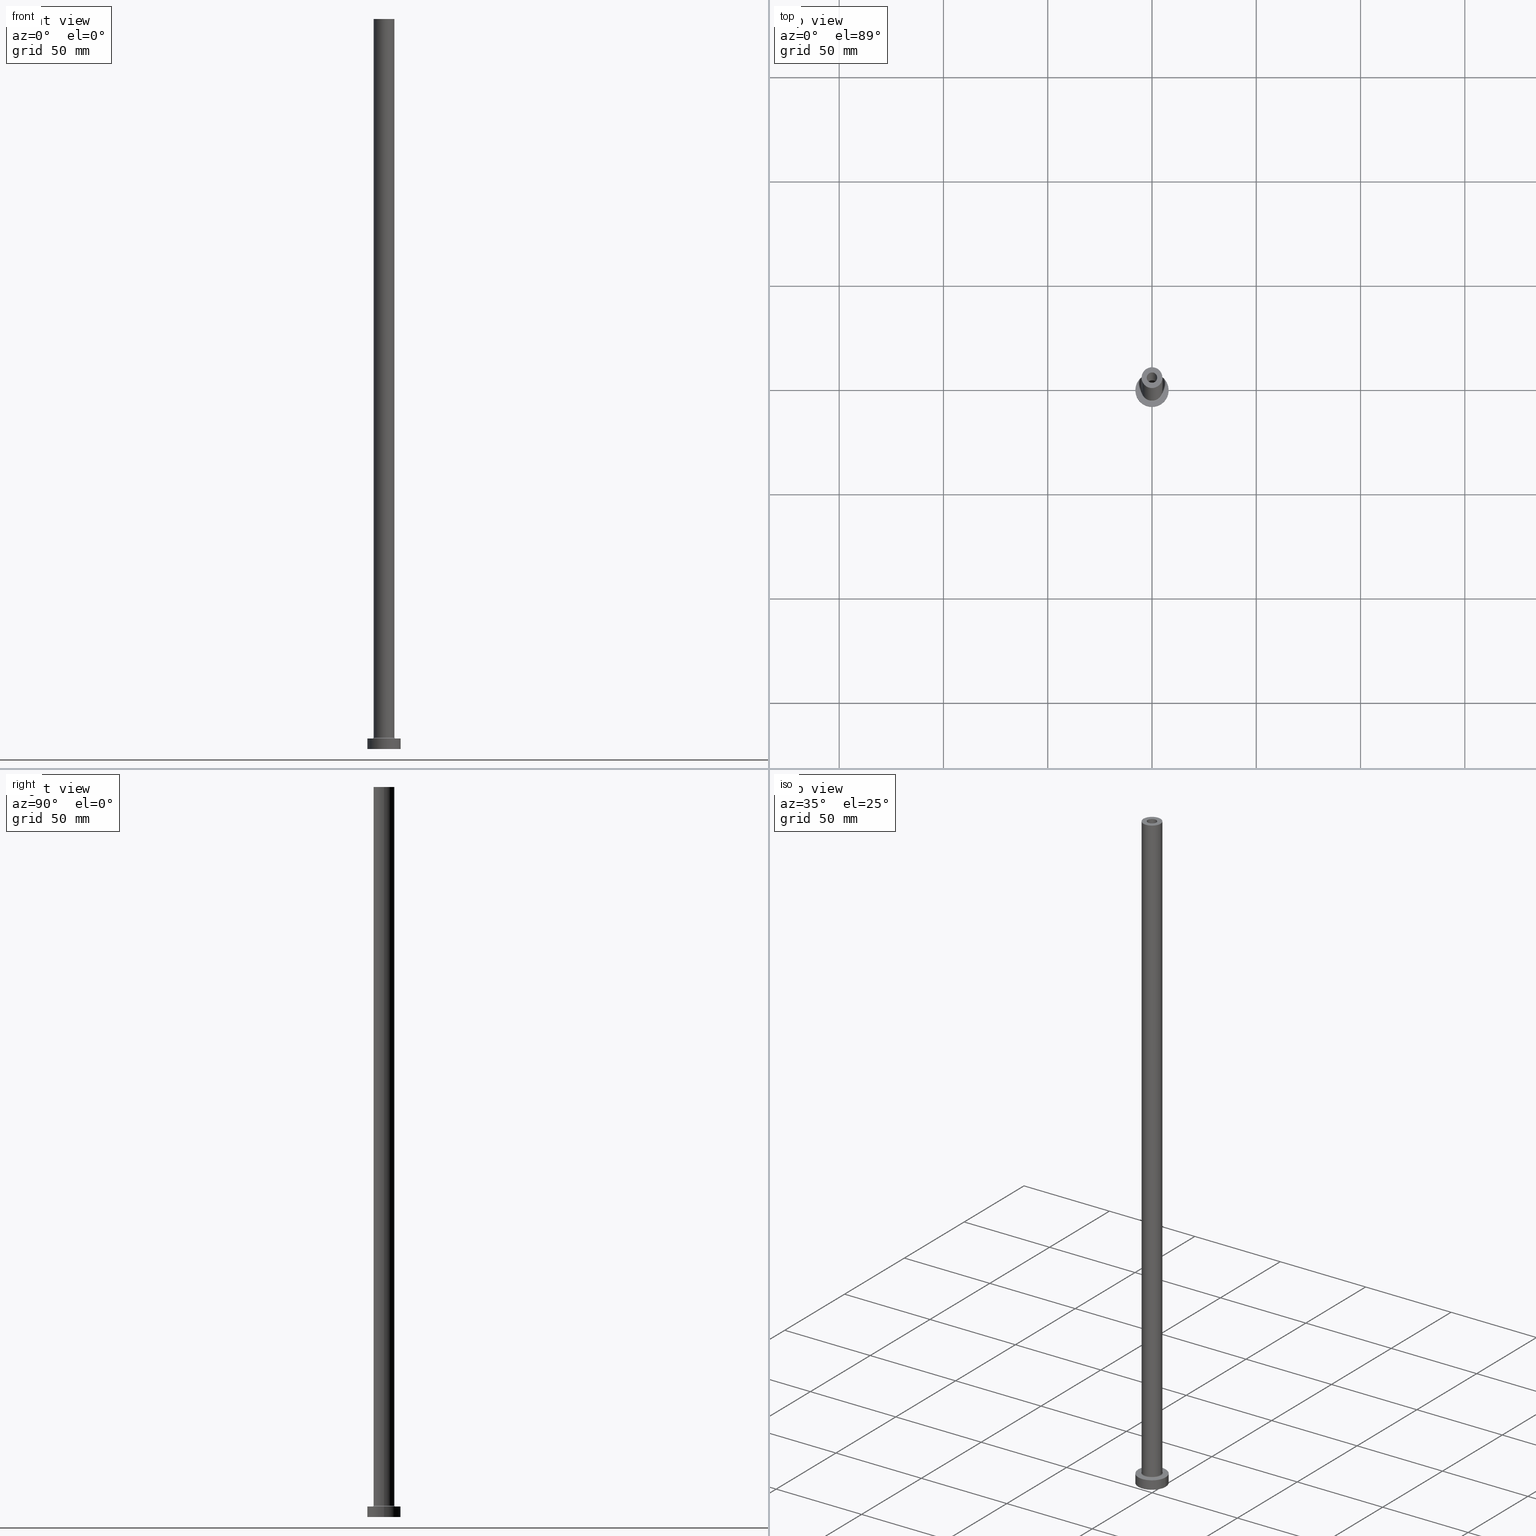
[diagram: canonical four-view strip — front | top / right | iso, engineering-drawing reading convention]
A machine part, canonical four-view strip (front | top / right | iso — engineering-drawing reading convention). The complete STEP part file that produces these views, byte-faithful:
ISO-10303-21;
HEADER;
FILE_DESCRIPTION (( 'STEP AP203' ),
    '1' );
FILE_NAME ('1d2e.STEP',
    '2023-02-13T16:58:20',
    ( '' ),
    ( '' ),
    'SwSTEP 2.0',
    'SolidWorks 2019',
    '' );
FILE_SCHEMA (( 'CONFIG_CONTROL_DESIGN' ));
ENDSEC;

DATA;
#1 = ORIENTED_EDGE ( 'NONE', *, *, #197, .T. ) ;
#2 = DIRECTION ( 'NONE',  ( 0.000000000000000000, 0.000000000000000000, 1.000000000000000000 ) ) ;
#3 = PLANE ( 'NONE',  #62 ) ;
#4 = MECHANICAL_CONTEXT ( 'NONE', #249, 'mechanical' ) ;
#5 = ORIENTED_EDGE ( 'NONE', *, *, #286, .F. ) ;
#6 = FACE_OUTER_BOUND ( 'NONE', #370, .T. ) ;
#7 = AXIS2_PLACEMENT_3D ( 'NONE', #343, #122, #280 ) ;
#8 = CARTESIAN_POINT ( 'NONE',  ( 0.000000000000000000, 0.000000000000000000, 312.4953318805773961 ) ) ;
#9 = ORIENTED_EDGE ( 'NONE', *, *, #268, .T. ) ;
#10 = DATE_AND_TIME ( #336, #359 ) ;
#11 = EDGE_CURVE ( 'NONE', #259, #373, #132, .T. ) ;
#12 = ORIENTED_EDGE ( 'NONE', *, *, #264, .F. ) ;
#13 = DIRECTION ( 'NONE',  ( -1.000000000000000000, 0.000000000000000000, 0.000000000000000000 ) ) ;
#14 = ORIENTED_EDGE ( 'NONE', *, *, #26, .T. ) ;
#15 = CARTESIAN_POINT ( 'NONE',  ( 0.000000000000000000, 0.000000000000000000, 5.500000000000005329 ) ) ;
#16 = CIRCLE ( 'NONE', #443, 2.649999999999999911 ) ;
#17 = CC_DESIGN_SECURITY_CLASSIFICATION ( #203, ( #63 ) ) ;
#18 = CARTESIAN_POINT ( 'NONE',  ( 0.000000000000000000, 0.000000000000000000, 0.000000000000000000 ) ) ;
#19 = DIRECTION ( 'NONE',  ( 1.000000000000000000, 0.000000000000000000, -0.000000000000000000 ) ) ;
#20 = DIRECTION ( 'NONE',  ( 0.000000000000000000, 0.000000000000000000, 1.000000000000000000 ) ) ;
#21 = APPROVAL_STATUS ( 'not_yet_approved' ) ;
#22 = PERSON_AND_ORGANIZATION ( #279, #36 ) ;
#23 = ADVANCED_FACE ( 'NONE', ( #189 ), #240, .F. ) ;
#24 = DATE_AND_TIME ( #246, #310 ) ;
#25 = AXIS2_PLACEMENT_3D ( 'NONE', #452, #127, #417 ) ;
#26 = EDGE_CURVE ( 'NONE', #454, #93, #266, .T. ) ;
#27 = CIRCLE ( 'NONE', #349, 5.000000000000000000 ) ;
#28 = EDGE_CURVE ( 'NONE', #176, #356, #51, .T. ) ;
#29 = ORIENTED_EDGE ( 'NONE', *, *, #172, .T. ) ;
#30 = CARTESIAN_POINT ( 'NONE',  ( 2.500000000000000000, 3.061616997868382648E-16, 350.0000000000000000 ) ) ;
#31 = CC_DESIGN_PERSON_AND_ORGANIZATION_ASSIGNMENT ( #48, #449, ( #203 ) ) ;
#32 = VERTEX_POINT ( 'NONE', #288 ) ;
#33 = AXIS2_PLACEMENT_3D ( 'NONE', #177, #296, #265 ) ;
#34 = AXIS2_PLACEMENT_3D ( 'NONE', #317, #347, #379 ) ;
#35 = PLANE ( 'NONE',  #248 ) ;
#36 = ORGANIZATION ( 'NEUR�EN�', 'NEUR�EN�', '' ) ;
#37 = VERTEX_POINT ( 'NONE', #253 ) ;
#38 = FACE_OUTER_BOUND ( 'NONE', #214, .T. ) ;
#39 = LINE ( 'NONE', #148, #425 ) ;
#40 = EDGE_LOOP ( 'NONE', ( #101, #205, #1, #134 ) ) ;
#41 = DIRECTION ( 'NONE',  ( 1.000000000000000000, 0.000000000000000000, -0.000000000000000000 ) ) ;
#42 = LINE ( 'NONE', #117, #289 ) ;
#43 = EDGE_LOOP ( 'NONE', ( #12, #71, #29, #423 ) ) ;
#44 = DIRECTION ( 'NONE',  ( 0.000000000000000000, 0.000000000000000000, 1.000000000000000000 ) ) ;
#45 = CIRCLE ( 'NONE', #380, 8.000000000000000000 ) ;
#46 = VERTEX_POINT ( 'NONE', #305 ) ;
#47 = ORIENTED_EDGE ( 'NONE', *, *, #126, .F. ) ;
#48 = PERSON_AND_ORGANIZATION ( #279, #36 ) ;
#49 = CARTESIAN_POINT ( 'NONE',  ( 2.500000000000000000, 3.061616997868382648E-16, 305.0000000000000000 ) ) ;
#50 = CALENDAR_DATE ( 2023, 13, 2 ) ;
#51 = LINE ( 'NONE', #98, #84 ) ;
#52 = EDGE_CURVE ( 'NONE', #67, #138, #42, .T. ) ;
#53 = CARTESIAN_POINT ( 'NONE',  ( 2.649999999999999911, 3.245314017740485962E-16, 312.4953318805773961 ) ) ;
#54 = CARTESIAN_POINT ( 'NONE',  ( -5.500000000000000000, 6.735557395310442023E-16, 5.500000000000005329 ) ) ;
#55 = AXIS2_PLACEMENT_3D ( 'NONE', #54, #345, #312 ) ;
#56 = EDGE_CURVE ( 'NONE', #244, #67, #99, .T. ) ;
#57 = PLANE ( 'NONE',  #191 ) ;
#58 = CARTESIAN_POINT ( 'NONE',  ( 0.000000000000000000, 0.000000000000000000, 0.000000000000000000 ) ) ;
#59 = EDGE_CURVE ( 'NONE', #46, #356, #120, .T. ) ;
#60 = DATE_TIME_ROLE ( 'classification_date' ) ;
#61 = ADVANCED_FACE ( 'NONE', ( #75 ), #366, .F. ) ;
#62 = AXIS2_PLACEMENT_3D ( 'NONE', #325, #395, #41 ) ;
#63 = PRODUCT_DEFINITION_FORMATION_WITH_SPECIFIED_SOURCE ( 'LIBOVOLN�', '', #166, .NOT_KNOWN. ) ;
#64 = AXIS2_PLACEMENT_3D ( 'NONE', #427, #169, #319 ) ;
#65 = PLANE ( 'NONE',  #422 ) ;
#66 = FACE_OUTER_BOUND ( 'NONE', #227, .T. ) ;
#67 = VERTEX_POINT ( 'NONE', #96 ) ;
#68 = AXIS2_PLACEMENT_3D ( 'NONE', #125, #88, #446 ) ;
#69 = CARTESIAN_POINT ( 'NONE',  ( 0.000000000000000000, 0.000000000000000000, 0.000000000000000000 ) ) ;
#70 = CALENDAR_DATE ( 2023, 13, 2 ) ;
#71 = ORIENTED_EDGE ( 'NONE', *, *, #321, .F. ) ;
#72 = CARTESIAN_POINT ( 'NONE',  ( 0.000000000000000000, 0.000000000000000000, 0.000000000000000000 ) ) ;
#73 = DATE_AND_TIME ( #70, #192 ) ;
#74 = DIRECTION ( 'NONE',  ( 1.000000000000000000, 0.000000000000000000, 0.000000000000000000 ) ) ;
#75 = FACE_OUTER_BOUND ( 'NONE', #254, .T. ) ;
#76 = ORIENTED_EDGE ( 'NONE', *, *, #11, .F. ) ;
#77 = DIRECTION ( 'NONE',  ( 1.000000000000000000, 0.000000000000000000, 0.000000000000000000 ) ) ;
#78 = DIRECTION ( 'NONE',  ( 1.000000000000000000, 0.000000000000000000, 0.000000000000000000 ) ) ;
#79 = ORIENTED_EDGE ( 'NONE', *, *, #160, .F. ) ;
#80 = ORIENTED_EDGE ( 'NONE', *, *, #440, .F. ) ;
#81 = PERSON_AND_ORGANIZATION_ROLE ( 'creator' ) ;
#82 = DIRECTION ( 'NONE',  ( -0.000000000000000000, -0.000000000000000000, -1.000000000000000000 ) ) ;
#83 = COORDINATED_UNIVERSAL_TIME_OFFSET ( 1, 0, .AHEAD. ) ;
#84 = VECTOR ( 'NONE', #150, 1000.000000000000000 ) ;
#85 = DIRECTION ( 'NONE',  ( 0.000000000000000000, 0.000000000000000000, 1.000000000000000000 ) ) ;
#86 = CARTESIAN_POINT ( 'NONE',  ( 0.000000000000000000, 0.000000000000000000, 350.0000000000000000 ) ) ;
#87 = CARTESIAN_POINT ( 'NONE',  ( 0.000000000000000000, 0.000000000000000000, 5.000000000000000000 ) ) ;
#88 = DIRECTION ( 'NONE',  ( -0.000000000000000000, -0.000000000000000000, -1.000000000000000000 ) ) ;
#89 = CARTESIAN_POINT ( 'NONE',  ( 8.000000000000000000, 9.797174393178825657E-16, 5.000000000000000000 ) ) ;
#90 = EDGE_CURVE ( 'NONE', #390, #176, #355, .T. ) ;
#91 = CIRCLE ( 'NONE', #68, 5.500000000000000000 ) ;
#92 = FACE_OUTER_BOUND ( 'NONE', #195, .T. ) ;
#93 = VERTEX_POINT ( 'NONE', #158 ) ;
#94 = PERSON_AND_ORGANIZATION_ROLE ( 'design_supplier' ) ;
#95 = EDGE_CURVE ( 'NONE', #32, #329, #135, .T. ) ;
#96 = CARTESIAN_POINT ( 'NONE',  ( -2.649999999999999911, 0.000000000000000000, 305.0000000000000000 ) ) ;
#97 = CLOSED_SHELL ( 'NONE', ( #23, #61, #141, #112, #171, #230, #306, #458, #167, #245, #207, #360, #168, #451 ) ) ;
#98 = CARTESIAN_POINT ( 'NONE',  ( 2.500000000000000000, 3.061616997868382648E-16, 350.0000000000000000 ) ) ;
#99 = CIRCLE ( 'NONE', #234, 2.649999999999999911 ) ;
#100 = EDGE_CURVE ( 'NONE', #138, #37, #209, .T. ) ;
#101 = ORIENTED_EDGE ( 'NONE', *, *, #26, .F. ) ;
#102 = FACE_OUTER_BOUND ( 'NONE', #40, .T. ) ;
#103 = EDGE_LOOP ( 'NONE', ( #299, #114, #257, #295 ) ) ;
#104 = DIRECTION ( 'NONE',  ( -0.000000000000000000, -0.000000000000000000, -1.000000000000000000 ) ) ;
#105 = ORIENTED_EDGE ( 'NONE', *, *, #346, .T. ) ;
#106 = TOROIDAL_SURFACE ( 'NONE', #154, 5.500000000000000000, 0.5000000000000000000 ) ;
#107 = DIRECTION ( 'NONE',  ( 1.000000000000000000, 0.000000000000000000, 0.000000000000000000 ) ) ;
#108 = APPROVAL ( #21, 'NEUR�EN�' ) ;
#109 = CARTESIAN_POINT ( 'NONE',  ( 0.000000000000000000, 0.000000000000000000, 305.0000000000000000 ) ) ;
#110 = ORIENTED_EDGE ( 'NONE', *, *, #28, .F. ) ;
#111 = FACE_BOUND ( 'NONE', #430, .T. ) ;
#112 = ADVANCED_FACE ( 'NONE', ( #92 ), #385, .T. ) ;
#113 = DIRECTION ( 'NONE',  ( 0.000000000000000000, 0.000000000000000000, -1.000000000000000000 ) ) ;
#114 = ORIENTED_EDGE ( 'NONE', *, *, #56, .T. ) ;
#115 = FACE_OUTER_BOUND ( 'NONE', #436, .T. ) ;
#116 = PERSON_AND_ORGANIZATION ( #279, #36 ) ;
#117 = CARTESIAN_POINT ( 'NONE',  ( -2.649999999999999911, 0.000000000000000000, 312.4953318805773961 ) ) ;
#118 = PRODUCT_RELATED_PRODUCT_CATEGORY ( 'detail', '', ( #166 ) ) ;
#119 = CARTESIAN_POINT ( 'NONE',  ( 8.000000000000000000, 9.797174393178825657E-16, 5.000000000000000000 ) ) ;
#120 = CIRCLE ( 'NONE', #262, 2.500000000000000000 ) ;
#121 = ORIENTED_EDGE ( 'NONE', *, *, #59, .T. ) ;
#122 = DIRECTION ( 'NONE',  ( 0.000000000000000000, 0.000000000000000000, 1.000000000000000000 ) ) ;
#123 = CARTESIAN_POINT ( 'NONE',  ( 0.000000000000000000, 0.000000000000000000, 5.000000000000000000 ) ) ;
#124 = DIRECTION ( 'NONE',  ( -0.000000000000000000, -0.000000000000000000, -1.000000000000000000 ) ) ;
#125 = CARTESIAN_POINT ( 'NONE',  ( 0.000000000000000000, 0.000000000000000000, 5.000000000000000000 ) ) ;
#126 = EDGE_CURVE ( 'NONE', #278, #402, #456, .T. ) ;
#127 = DIRECTION ( 'NONE',  ( -0.000000000000000000, -0.000000000000000000, -1.000000000000000000 ) ) ;
#128 = AXIS2_PLACEMENT_3D ( 'NONE', #123, #374, #412 ) ;
#129 = APPROVAL_PERSON_ORGANIZATION ( #313, #108, #162 ) ;
#130 = DIRECTION ( 'NONE',  ( 1.000000000000000000, 0.000000000000000000, 0.000000000000000000 ) ) ;
#131 = EDGE_CURVE ( 'NONE', #176, #390, #275, .T. ) ;
#132 = CIRCLE ( 'NONE', #369, 8.000000000000000000 ) ;
#133 = ORIENTED_EDGE ( 'NONE', *, *, #256, .F. ) ;
#134 = ORIENTED_EDGE ( 'NONE', *, *, #418, .T. ) ;
#135 = CIRCLE ( 'NONE', #284, 8.000000000000000000 ) ;
#136 =( LENGTH_UNIT ( ) NAMED_UNIT ( * ) SI_UNIT ( .MILLI., .METRE. ) );
#137 = CARTESIAN_POINT ( 'NONE',  ( -5.000000000000000000, 0.000000000000000000, 350.0000000000000000 ) ) ;
#138 = VERTEX_POINT ( 'NONE', #170 ) ;
#139 =( NAMED_UNIT ( * ) SI_UNIT ( $, .STERADIAN. ) SOLID_ANGLE_UNIT ( ) );
#140 = CARTESIAN_POINT ( 'NONE',  ( 0.000000000000000000, 0.000000000000000000, 5.000000000000000000 ) ) ;
#141 = ADVANCED_FACE ( 'NONE', ( #210 ), #106, .F. ) ;
#142 = EDGE_LOOP ( 'NONE', ( #110, #293, #183, #328 ) ) ;
#143 = DIRECTION ( 'NONE',  ( -1.000000000000000000, 0.000000000000000000, 0.000000000000000000 ) ) ;
#144 = ORIENTED_EDGE ( 'NONE', *, *, #320, .F. ) ;
#145 = CIRCLE ( 'NONE', #322, 2.649999999999999911 ) ;
#146 = CARTESIAN_POINT ( 'NONE',  ( 0.000000000000000000, 0.000000000000000000, 350.0000000000000000 ) ) ;
#147 = ORIENTED_EDGE ( 'NONE', *, *, #346, .F. ) ;
#148 = CARTESIAN_POINT ( 'NONE',  ( -2.500000000000000000, 0.000000000000000000, 350.0000000000000000 ) ) ;
#149 = CALENDAR_DATE ( 2023, 13, 2 ) ;
#150 = DIRECTION ( 'NONE',  ( 0.000000000000000000, 0.000000000000000000, -1.000000000000000000 ) ) ;
#151 = DIRECTION ( 'NONE',  ( 1.000000000000000000, 0.000000000000000000, 0.000000000000000000 ) ) ;
#152 = ORIENTED_EDGE ( 'NONE', *, *, #340, .T. ) ;
#153 = CARTESIAN_POINT ( 'NONE',  ( -8.000000000000000000, 0.000000000000000000, 5.000000000000000000 ) ) ;
#154 = AXIS2_PLACEMENT_3D ( 'NONE', #457, #44, #362 ) ;
#155 =( GEOMETRIC_REPRESENTATION_CONTEXT ( 3 ) GLOBAL_UNCERTAINTY_ASSIGNED_CONTEXT ( ( #187 ) ) GLOBAL_UNIT_ASSIGNED_CONTEXT ( ( #136, #215, #139 ) ) REPRESENTATION_CONTEXT ( 'NONE', 'WORKASPACE' ) );
#156 = FACE_BOUND ( 'NONE', #291, .T. ) ;
#157 = APPROVAL_DATE_TIME ( #269, #228 ) ;
#158 = CARTESIAN_POINT ( 'NONE',  ( 5.000000000000000000, 6.123233995736766282E-16, 5.500000000000005329 ) ) ;
#159 = COORDINATED_UNIVERSAL_TIME_OFFSET ( 1, 0, .AHEAD. ) ;
#160 = EDGE_CURVE ( 'NONE', #390, #46, #39, .T. ) ;
#161 = DIRECTION ( 'NONE',  ( 1.000000000000000000, 0.000000000000000000, 0.000000000000000000 ) ) ;
#162 = APPROVAL_ROLE ( '' ) ;
#163 = SECURITY_CLASSIFICATION_LEVEL ( 'unclassified' ) ;
#164 = CIRCLE ( 'NONE', #55, 0.5000000000000004441 ) ;
#165 = APPROVAL_ROLE ( '' ) ;
#166 = PRODUCT ( '1d2e', '1d2e', '', ( #4 ) ) ;
#167 = ADVANCED_FACE ( 'NONE', ( #102 ), #405, .T. ) ;
#168 = ADVANCED_FACE ( 'NONE', ( #111, #438 ), #3, .F. ) ;
#169 = DIRECTION ( 'NONE',  ( 0.000000000000000000, 0.000000000000000000, 1.000000000000000000 ) ) ;
#170 = CARTESIAN_POINT ( 'NONE',  ( -2.649999999999999911, 0.000000000000000000, 0.000000000000000000 ) ) ;
#171 = ADVANCED_FACE ( 'NONE', ( #66 ), #461, .T. ) ;
#172 = EDGE_CURVE ( 'NONE', #373, #32, #429, .T. ) ;
#173 = DIRECTION ( 'NONE',  ( -1.000000000000000000, 0.000000000000000000, 0.000000000000000000 ) ) ;
#174 = APPROVAL_DATE_TIME ( #73, #316 ) ;
#175 = CARTESIAN_POINT ( 'NONE',  ( 5.000000000000000000, 6.123233995736766282E-16, 350.0000000000000000 ) ) ;
#176 = VERTEX_POINT ( 'NONE', #30 ) ;
#177 = CARTESIAN_POINT ( 'NONE',  ( 0.000000000000000000, 0.000000000000000000, 350.0000000000000000 ) ) ;
#178 = VERTEX_POINT ( 'NONE', #180 ) ;
#179 = AXIS2_PLACEMENT_3D ( 'NONE', #140, #104, #224 ) ;
#180 = CARTESIAN_POINT ( 'NONE',  ( -5.000000000000000000, 0.000000000000000000, 350.0000000000000000 ) ) ;
#181 = EDGE_CURVE ( 'NONE', #93, #428, #202, .T. ) ;
#182 = CC_DESIGN_PERSON_AND_ORGANIZATION_ASSIGNMENT ( #272, #94, ( #63 ) ) ;
#183 = ORIENTED_EDGE ( 'NONE', *, *, #160, .T. ) ;
#184 = CARTESIAN_POINT ( 'NONE',  ( 0.000000000000000000, 0.000000000000000000, 350.0000000000000000 ) ) ;
#185 = CARTESIAN_POINT ( 'NONE',  ( 0.000000000000000000, 0.000000000000000000, 5.000000000000000000 ) ) ;
#186 = ORIENTED_EDGE ( 'NONE', *, *, #90, .F. ) ;
#187 = UNCERTAINTY_MEASURE_WITH_UNIT (LENGTH_MEASURE( 1.000000000000000082E-05 ), #136, 'distance_accuracy_value', 'NONE');
#188 = CARTESIAN_POINT ( 'NONE',  ( 0.000000000000000000, 0.000000000000000000, 5.500000000000005329 ) ) ;
#189 = FACE_OUTER_BOUND ( 'NONE', #434, .T. ) ;
#190 = ORIENTED_EDGE ( 'NONE', *, *, #282, .F. ) ;
#191 = AXIS2_PLACEMENT_3D ( 'NONE', #204, #281, #19 ) ;
#192 = LOCAL_TIME ( 17, 58, 20.00000000000000000, #225 ) ;
#193 = DIRECTION ( 'NONE',  ( -0.000000000000000000, -0.000000000000000000, -1.000000000000000000 ) ) ;
#194 = PERSON_AND_ORGANIZATION_ROLE ( 'creator' ) ;
#195 = EDGE_LOOP ( 'NONE', ( #80, #14, #361, #403 ) ) ;
#196 = CARTESIAN_POINT ( 'NONE',  ( 0.000000000000000000, 0.000000000000000000, 0.000000000000000000 ) ) ;
#197 = EDGE_CURVE ( 'NONE', #178, #428, #335, .T. ) ;
#198 = DIRECTION ( 'NONE',  ( 0.000000000000000000, 0.000000000000000000, -1.000000000000000000 ) ) ;
#199 = PERSON_AND_ORGANIZATION ( #279, #36 ) ;
#200 = DESIGN_CONTEXT ( 'detailed design', #338, 'design' ) ;
#201 = CYLINDRICAL_SURFACE ( 'NONE', #432, 2.649999999999999911 ) ;
#202 = CIRCLE ( 'NONE', #211, 5.000000000000000000 ) ;
#203 = SECURITY_CLASSIFICATION ( '', '', #163 ) ;
#204 = CARTESIAN_POINT ( 'NONE',  ( 0.000000000000000000, 0.000000000000000000, 5.000000000000000000 ) ) ;
#205 = ORIENTED_EDGE ( 'NONE', *, *, #378, .F. ) ;
#206 = PERSON_AND_ORGANIZATION ( #279, #36 ) ;
#207 = ADVANCED_FACE ( 'NONE', ( #115 ), #218, .F. ) ;
#208 = AXIS2_PLACEMENT_3D ( 'NONE', #237, #113, #173 ) ;
#209 = CIRCLE ( 'NONE', #247, 2.649999999999999911 ) ;
#210 = FACE_OUTER_BOUND ( 'NONE', #323, .T. ) ;
#211 = AXIS2_PLACEMENT_3D ( 'NONE', #365, #431, #107 ) ;
#212 = ORIENTED_EDGE ( 'NONE', *, *, #264, .T. ) ;
#213 = DIRECTION ( 'NONE',  ( -1.000000000000000000, 0.000000000000000000, 0.000000000000000000 ) ) ;
#214 = EDGE_LOOP ( 'NONE', ( #222, #147 ) ) ;
#215 =( NAMED_UNIT ( * ) PLANE_ANGLE_UNIT ( ) SI_UNIT ( $, .RADIAN. ) );
#216 = ORIENTED_EDGE ( 'NONE', *, *, #282, .T. ) ;
#217 = DIRECTION ( 'NONE',  ( -0.000000000000000000, -0.000000000000000000, -1.000000000000000000 ) ) ;
#218 = TOROIDAL_SURFACE ( 'NONE', #309, 5.500000000000000000, 0.5000000000000000000 ) ;
#219 = AXIS2_PLACEMENT_3D ( 'NONE', #18, #383, #78 ) ;
#220 = DIRECTION ( 'NONE',  ( 0.000000000000000000, 0.000000000000000000, 1.000000000000000000 ) ) ;
#221 = DIRECTION ( 'NONE',  ( -0.000000000000000000, -0.000000000000000000, -1.000000000000000000 ) ) ;
#222 = ORIENTED_EDGE ( 'NONE', *, *, #95, .F. ) ;
#223 = CARTESIAN_POINT ( 'NONE',  ( -5.000000000000000000, 0.000000000000000000, 5.500000000000005329 ) ) ;
#224 = DIRECTION ( 'NONE',  ( -1.000000000000000000, 0.000000000000000000, 0.000000000000000000 ) ) ;
#225 = COORDINATED_UNIVERSAL_TIME_OFFSET ( 1, 0, .AHEAD. ) ;
#226 = DIRECTION ( 'NONE',  ( 1.000000000000000000, 0.000000000000000000, 0.000000000000000000 ) ) ;
#227 = EDGE_LOOP ( 'NONE', ( #76, #212, #105, #410 ) ) ;
#228 = APPROVAL ( #351, 'NEUR�EN�' ) ;
#229 = ORIENTED_EDGE ( 'NONE', *, *, #59, .F. ) ;
#230 = ADVANCED_FACE ( 'NONE', ( #258 ), #331, .T. ) ;
#231 = ORIENTED_EDGE ( 'NONE', *, *, #100, .F. ) ;
#232 = ORIENTED_EDGE ( 'NONE', *, *, #131, .F. ) ;
#233 = VECTOR ( 'NONE', #441, 1000.000000000000000 ) ;
#234 = AXIS2_PLACEMENT_3D ( 'NONE', #324, #297, #433 ) ;
#235 = CARTESIAN_POINT ( 'NONE',  ( 2.649999999999999911, 3.245314017740485962E-16, 305.0000000000000000 ) ) ;
#236 = MANIFOLD_SOLID_BREP ( 'Odebrat vysunut�m4', #97 ) ;
#237 = CARTESIAN_POINT ( 'NONE',  ( 0.000000000000000000, 0.000000000000000000, 350.0000000000000000 ) ) ;
#238 = APPLICATION_PROTOCOL_DEFINITION ( 'international standard', 'config_control_design', 1994, #249 ) ;
#239 = DIRECTION ( 'NONE',  ( 1.000000000000000000, 0.000000000000000000, 0.000000000000000000 ) ) ;
#240 = CYLINDRICAL_SURFACE ( 'NONE', #208, 2.500000000000000000 ) ;
#241 = CARTESIAN_POINT ( 'NONE',  ( 8.000000000000000000, 9.797174393178825657E-16, 0.000000000000000000 ) ) ;
#242 = FACE_OUTER_BOUND ( 'NONE', #103, .T. ) ;
#243 = CIRCLE ( 'NONE', #358, 0.5000000000000004441 ) ;
#244 = VERTEX_POINT ( 'NONE', #235 ) ;
#245 = ADVANCED_FACE ( 'NONE', ( #294, #6 ), #35, .T. ) ;
#246 = CALENDAR_DATE ( 2023, 13, 2 ) ;
#247 = AXIS2_PLACEMENT_3D ( 'NONE', #350, #124, #285 ) ;
#248 = AXIS2_PLACEMENT_3D ( 'NONE', #146, #301, #260 ) ;
#249 = APPLICATION_CONTEXT ( 'configuration controlled 3d designs of mechanical parts and assemblies' ) ;
#250 = DIRECTION ( 'NONE',  ( 1.000000000000000000, 0.000000000000000000, 0.000000000000000000 ) ) ;
#251 = AXIS2_PLACEMENT_3D ( 'NONE', #185, #82, #143 ) ;
#252 = CC_DESIGN_APPROVAL ( #228, ( #414 ) ) ;
#253 = CARTESIAN_POINT ( 'NONE',  ( 2.649999999999999911, 3.245314017740485962E-16, 0.000000000000000000 ) ) ;
#254 = EDGE_LOOP ( 'NONE', ( #152, #398, #416, #302 ) ) ;
#255 = CC_DESIGN_PERSON_AND_ORGANIZATION_ASSIGNMENT ( #199, #194, ( #414 ) ) ;
#256 = EDGE_CURVE ( 'NONE', #37, #138, #16, .T. ) ;
#257 = ORIENTED_EDGE ( 'NONE', *, *, #52, .T. ) ;
#258 = FACE_OUTER_BOUND ( 'NONE', #43, .T. ) ;
#259 = VERTEX_POINT ( 'NONE', #89 ) ;
#260 = DIRECTION ( 'NONE',  ( 1.000000000000000000, 0.000000000000000000, -0.000000000000000000 ) ) ;
#261 = PERSON_AND_ORGANIZATION_ROLE ( 'design_owner' ) ;
#262 = AXIS2_PLACEMENT_3D ( 'NONE', #109, #406, #226 ) ;
#263 = ORIENTED_EDGE ( 'NONE', *, *, #56, .F. ) ;
#264 = EDGE_CURVE ( 'NONE', #259, #329, #448, .T. ) ;
#265 = DIRECTION ( 'NONE',  ( -1.000000000000000000, 0.000000000000000000, 0.000000000000000000 ) ) ;
#266 = LINE ( 'NONE', #175, #233 ) ;
#267 = DIRECTION ( 'NONE',  ( 0.000000000000000000, 0.000000000000000000, 1.000000000000000000 ) ) ;
#268 = EDGE_CURVE ( 'NONE', #356, #46, #453, .T. ) ;
#269 = DATE_AND_TIME ( #50, #342 ) ;
#270 = PRODUCT_DEFINITION_SHAPE ( 'NONE', 'NONE',  #414 ) ;
#271 = EDGE_LOOP ( 'NONE', ( #186, #232 ) ) ;
#272 = PERSON_AND_ORGANIZATION ( #279, #36 ) ;
#273 = COORDINATED_UNIVERSAL_TIME_OFFSET ( 1, 0, .AHEAD. ) ;
#274 = DIRECTION ( 'NONE',  ( 0.000000000000000000, 0.000000000000000000, -1.000000000000000000 ) ) ;
#275 = CIRCLE ( 'NONE', #64, 2.500000000000000000 ) ;
#276 = AXIS2_PLACEMENT_3D ( 'NONE', #184, #435, #213 ) ;
#277 = DIRECTION ( 'NONE',  ( -0.000000000000000000, -0.000000000000000000, -1.000000000000000000 ) ) ;
#278 = VERTEX_POINT ( 'NONE', #283 ) ;
#279 = PERSON ( 'NEUR�EN�', 'NEUR�EN�', 'NEUR�EN�', ('NEUR�EN�'), ('NEUR�EN�'), ('NEUR�EN�') ) ;
#280 = DIRECTION ( 'NONE',  ( 1.000000000000000000, 0.000000000000000000, 0.000000000000000000 ) ) ;
#281 = DIRECTION ( 'NONE',  ( 0.000000000000000000, 0.000000000000000000, 1.000000000000000000 ) ) ;
#282 = EDGE_CURVE ( 'NONE', #93, #402, #243, .T. ) ;
#283 = CARTESIAN_POINT ( 'NONE',  ( -5.500000000000000000, 6.735557395310442023E-16, 5.000000000000002665 ) ) ;
#284 = AXIS2_PLACEMENT_3D ( 'NONE', #58, #314, #447 ) ;
#285 = DIRECTION ( 'NONE',  ( 1.000000000000000000, 0.000000000000000000, 0.000000000000000000 ) ) ;
#286 = EDGE_CURVE ( 'NONE', #428, #278, #164, .T. ) ;
#287 = VECTOR ( 'NONE', #277, 1000.000000000000000 ) ;
#288 = CARTESIAN_POINT ( 'NONE',  ( -8.000000000000000000, 0.000000000000000000, 0.000000000000000000 ) ) ;
#289 = VECTOR ( 'NONE', #274, 1000.000000000000000 ) ;
#290 = APPROVAL_PERSON_ORGANIZATION ( #206, #316, #165 ) ;
#291 = EDGE_LOOP ( 'NONE', ( #308, #437 ) ) ;
#292 = CARTESIAN_POINT ( 'NONE',  ( -8.000000000000000000, 0.000000000000000000, 5.000000000000000000 ) ) ;
#293 = ORIENTED_EDGE ( 'NONE', *, *, #131, .T. ) ;
#294 = FACE_BOUND ( 'NONE', #271, .T. ) ;
#295 = ORIENTED_EDGE ( 'NONE', *, *, #100, .T. ) ;
#296 = DIRECTION ( 'NONE',  ( -0.000000000000000000, -0.000000000000000000, -1.000000000000000000 ) ) ;
#297 = DIRECTION ( 'NONE',  ( 0.000000000000000000, 0.000000000000000000, 1.000000000000000000 ) ) ;
#298 = VECTOR ( 'NONE', #377, 1000.000000000000000 ) ;
#299 = ORIENTED_EDGE ( 'NONE', *, *, #391, .F. ) ;
#300 = CARTESIAN_POINT ( 'NONE',  ( 0.000000000000000000, 0.000000000000000000, 350.0000000000000000 ) ) ;
#301 = DIRECTION ( 'NONE',  ( 0.000000000000000000, 0.000000000000000000, 1.000000000000000000 ) ) ;
#302 = ORIENTED_EDGE ( 'NONE', *, *, #52, .F. ) ;
#303 = DIRECTION ( 'NONE',  ( 0.000000000000000000, 0.000000000000000000, -1.000000000000000000 ) ) ;
#304 = APPROVAL_DATE_TIME ( #409, #108 ) ;
#305 = CARTESIAN_POINT ( 'NONE',  ( -2.500000000000000000, 0.000000000000000000, 305.0000000000000000 ) ) ;
#306 = ADVANCED_FACE ( 'NONE', ( #156, #442 ), #57, .T. ) ;
#307 = DIRECTION ( 'NONE',  ( 0.000000000000000000, 0.000000000000000000, 1.000000000000000000 ) ) ;
#308 = ORIENTED_EDGE ( 'NONE', *, *, #320, .T. ) ;
#309 = AXIS2_PLACEMENT_3D ( 'NONE', #188, #400, #74 ) ;
#310 = LOCAL_TIME ( 17, 58, 20.00000000000000000, #159 ) ;
#311 = DIRECTION ( 'NONE',  ( 0.000000000000000000, 0.000000000000000000, -1.000000000000000000 ) ) ;
#312 = DIRECTION ( 'NONE',  ( -1.000000000000000000, 1.224646799147351482E-16, 0.000000000000000000 ) ) ;
#313 = PERSON_AND_ORGANIZATION ( #279, #36 ) ;
#314 = DIRECTION ( 'NONE',  ( 0.000000000000000000, 0.000000000000000000, 1.000000000000000000 ) ) ;
#315 = CARTESIAN_POINT ( 'NONE',  ( 0.000000000000000000, 0.000000000000000000, 312.4953318805773961 ) ) ;
#316 = APPROVAL ( #348, 'NEUR�EN�' ) ;
#317 = CARTESIAN_POINT ( 'NONE',  ( 0.000000000000000000, 0.000000000000000000, 350.0000000000000000 ) ) ;
#318 = CIRCLE ( 'NONE', #371, 5.000000000000000000 ) ;
#319 = DIRECTION ( 'NONE',  ( 1.000000000000000000, 0.000000000000000000, 0.000000000000000000 ) ) ;
#320 = EDGE_CURVE ( 'NONE', #402, #278, #91, .T. ) ;
#321 = EDGE_CURVE ( 'NONE', #373, #259, #341, .T. ) ;
#322 = AXIS2_PLACEMENT_3D ( 'NONE', #408, #20, #151 ) ;
#323 = EDGE_LOOP ( 'NONE', ( #352, #334, #144, #190 ) ) ;
#324 = CARTESIAN_POINT ( 'NONE',  ( 0.000000000000000000, 0.000000000000000000, 305.0000000000000000 ) ) ;
#325 = CARTESIAN_POINT ( 'NONE',  ( 0.000000000000000000, 0.000000000000000000, 305.0000000000000000 ) ) ;
#326 = AXIS2_PLACEMENT_3D ( 'NONE', #8, #375, #344 ) ;
#327 = ORIENTED_EDGE ( 'NONE', *, *, #378, .T. ) ;
#328 = ORIENTED_EDGE ( 'NONE', *, *, #268, .F. ) ;
#329 = VERTEX_POINT ( 'NONE', #241 ) ;
#330 = CC_DESIGN_PERSON_AND_ORGANIZATION_ASSIGNMENT ( #116, #81, ( #63 ) ) ;
#331 = CYLINDRICAL_SURFACE ( 'NONE', #179, 8.000000000000000000 ) ;
#332 = APPLICATION_PROTOCOL_DEFINITION ( 'international standard', 'config_control_design', 1994, #338 ) ;
#333 = AXIS2_PLACEMENT_3D ( 'NONE', #392, #354, #250 ) ;
#334 = ORIENTED_EDGE ( 'NONE', *, *, #286, .T. ) ;
#335 = LINE ( 'NONE', #137, #397 ) ;
#336 = CALENDAR_DATE ( 2023, 13, 2 ) ;
#337 = DIRECTION ( 'NONE',  ( 0.000000000000000000, 0.000000000000000000, 1.000000000000000000 ) ) ;
#338 = APPLICATION_CONTEXT ( 'configuration controlled 3d designs of mechanical parts and assemblies' ) ;
#339 = CARTESIAN_POINT ( 'NONE',  ( 5.500000000000000000, 0.000000000000000000, 5.000000000000002665 ) ) ;
#340 = EDGE_CURVE ( 'NONE', #67, #244, #145, .T. ) ;
#341 = CIRCLE ( 'NONE', #128, 8.000000000000000000 ) ;
#342 = LOCAL_TIME ( 17, 58, 20.00000000000000000, #273 ) ;
#343 = CARTESIAN_POINT ( 'NONE',  ( 0.000000000000000000, 0.000000000000000000, 305.0000000000000000 ) ) ;
#344 = DIRECTION ( 'NONE',  ( -1.000000000000000000, 0.000000000000000000, 0.000000000000000000 ) ) ;
#345 = DIRECTION ( 'NONE',  ( 1.224646799147353207E-16, 1.000000000000000000, -0.000000000000000000 ) ) ;
#346 = EDGE_CURVE ( 'NONE', #329, #32, #45, .T. ) ;
#347 = DIRECTION ( 'NONE',  ( 0.000000000000000000, 0.000000000000000000, 1.000000000000000000 ) ) ;
#348 = APPROVAL_STATUS ( 'not_yet_approved' ) ;
#349 = AXIS2_PLACEMENT_3D ( 'NONE', #86, #307, #239 ) ;
#350 = CARTESIAN_POINT ( 'NONE',  ( 0.000000000000000000, 0.000000000000000000, 0.000000000000000000 ) ) ;
#351 = APPROVAL_STATUS ( 'not_yet_approved' ) ;
#352 = ORIENTED_EDGE ( 'NONE', *, *, #418, .F. ) ;
#353 = CC_DESIGN_DATE_AND_TIME_ASSIGNMENT ( #10, #439, ( #414 ) ) ;
#354 = DIRECTION ( 'NONE',  ( -0.000000000000000000, -0.000000000000000000, -1.000000000000000000 ) ) ;
#355 = CIRCLE ( 'NONE', #34, 2.500000000000000000 ) ;
#356 = VERTEX_POINT ( 'NONE', #49 ) ;
#357 = EDGE_LOOP ( 'NONE', ( #404, #363 ) ) ;
#358 = AXIS2_PLACEMENT_3D ( 'NONE', #411, #381, #311 ) ;
#359 = LOCAL_TIME ( 17, 58, 20.00000000000000000, #413 ) ;
#360 = ADVANCED_FACE ( 'NONE', ( #242 ), #201, .F. ) ;
#361 = ORIENTED_EDGE ( 'NONE', *, *, #181, .T. ) ;
#362 = DIRECTION ( 'NONE',  ( 1.000000000000000000, 0.000000000000000000, 0.000000000000000000 ) ) ;
#363 = ORIENTED_EDGE ( 'NONE', *, *, #11, .T. ) ;
#364 = FACE_BOUND ( 'NONE', #396, .T. ) ;
#365 = CARTESIAN_POINT ( 'NONE',  ( 0.000000000000000000, 0.000000000000000000, 5.500000000000005329 ) ) ;
#366 = CYLINDRICAL_SURFACE ( 'NONE', #326, 2.649999999999999911 ) ;
#367 = ORIENTED_EDGE ( 'NONE', *, *, #90, .T. ) ;
#368 = DIRECTION ( 'NONE',  ( 1.000000000000000000, 0.000000000000000000, -0.000000000000000000 ) ) ;
#369 = AXIS2_PLACEMENT_3D ( 'NONE', #87, #85, #130 ) ;
#370 = EDGE_LOOP ( 'NONE', ( #327, #401 ) ) ;
#371 = AXIS2_PLACEMENT_3D ( 'NONE', #300, #2, #455 ) ;
#372 = EDGE_LOOP ( 'NONE', ( #384, #263 ) ) ;
#373 = VERTEX_POINT ( 'NONE', #153 ) ;
#374 = DIRECTION ( 'NONE',  ( 0.000000000000000000, 0.000000000000000000, 1.000000000000000000 ) ) ;
#375 = DIRECTION ( 'NONE',  ( 0.000000000000000000, 0.000000000000000000, -1.000000000000000000 ) ) ;
#376 = CARTESIAN_POINT ( 'NONE',  ( -2.500000000000000000, 0.000000000000000000, 350.0000000000000000 ) ) ;
#377 = DIRECTION ( 'NONE',  ( 0.000000000000000000, 0.000000000000000000, -1.000000000000000000 ) ) ;
#378 = EDGE_CURVE ( 'NONE', #178, #454, #27, .T. ) ;
#379 = DIRECTION ( 'NONE',  ( 1.000000000000000000, 0.000000000000000000, 0.000000000000000000 ) ) ;
#380 = AXIS2_PLACEMENT_3D ( 'NONE', #196, #337, #161 ) ;
#381 = DIRECTION ( 'NONE',  ( 0.000000000000000000, -1.000000000000000000, 0.000000000000000000 ) ) ;
#382 = ADVANCED_BREP_SHAPE_REPRESENTATION ( '1d2e', ( #236, #219 ), #155 ) ;
#383 = DIRECTION ( 'NONE',  ( 0.000000000000000000, 0.000000000000000000, 1.000000000000000000 ) ) ;
#384 = ORIENTED_EDGE ( 'NONE', *, *, #340, .F. ) ;
#385 = CYLINDRICAL_SURFACE ( 'NONE', #25, 5.000000000000000000 ) ;
#386 = APPROVAL_PERSON_ORGANIZATION ( #420, #228, #421 ) ;
#387 = VECTOR ( 'NONE', #193, 1000.000000000000000 ) ;
#388 = CC_DESIGN_APPROVAL ( #108, ( #63 ) ) ;
#389 = CARTESIAN_POINT ( 'NONE',  ( 5.000000000000000000, 6.123233995736766282E-16, 350.0000000000000000 ) ) ;
#390 = VERTEX_POINT ( 'NONE', #376 ) ;
#391 = EDGE_CURVE ( 'NONE', #244, #37, #445, .T. ) ;
#392 = CARTESIAN_POINT ( 'NONE',  ( 0.000000000000000000, 0.000000000000000000, 5.000000000000000000 ) ) ;
#393 = ORIENTED_EDGE ( 'NONE', *, *, #28, .T. ) ;
#394 = FACE_OUTER_BOUND ( 'NONE', #142, .T. ) ;
#395 = DIRECTION ( 'NONE',  ( 0.000000000000000000, 0.000000000000000000, 1.000000000000000000 ) ) ;
#396 = EDGE_LOOP ( 'NONE', ( #231, #133 ) ) ;
#397 = VECTOR ( 'NONE', #217, 1000.000000000000000 ) ;
#398 = ORIENTED_EDGE ( 'NONE', *, *, #391, .T. ) ;
#399 = CYLINDRICAL_SURFACE ( 'NONE', #276, 2.500000000000000000 ) ;
#400 = DIRECTION ( 'NONE',  ( 0.000000000000000000, 0.000000000000000000, 1.000000000000000000 ) ) ;
#401 = ORIENTED_EDGE ( 'NONE', *, *, #440, .T. ) ;
#402 = VERTEX_POINT ( 'NONE', #339 ) ;
#403 = ORIENTED_EDGE ( 'NONE', *, *, #197, .F. ) ;
#404 = ORIENTED_EDGE ( 'NONE', *, *, #321, .T. ) ;
#405 = CYLINDRICAL_SURFACE ( 'NONE', #33, 5.000000000000000000 ) ;
#406 = DIRECTION ( 'NONE',  ( 0.000000000000000000, 0.000000000000000000, 1.000000000000000000 ) ) ;
#407 = CC_DESIGN_APPROVAL ( #316, ( #203 ) ) ;
#408 = CARTESIAN_POINT ( 'NONE',  ( 0.000000000000000000, 0.000000000000000000, 305.0000000000000000 ) ) ;
#409 = DATE_AND_TIME ( #149, #444 ) ;
#410 = ORIENTED_EDGE ( 'NONE', *, *, #172, .F. ) ;
#411 = CARTESIAN_POINT ( 'NONE',  ( 5.500000000000000000, 0.000000000000000000, 5.500000000000005329 ) ) ;
#412 = DIRECTION ( 'NONE',  ( 1.000000000000000000, 0.000000000000000000, 0.000000000000000000 ) ) ;
#413 = COORDINATED_UNIVERSAL_TIME_OFFSET ( 1, 0, .AHEAD. ) ;
#414 = PRODUCT_DEFINITION ( 'NEZN�M�', '', #63, #200 ) ;
#415 = CIRCLE ( 'NONE', #450, 5.000000000000000000 ) ;
#416 = ORIENTED_EDGE ( 'NONE', *, *, #256, .T. ) ;
#417 = DIRECTION ( 'NONE',  ( -1.000000000000000000, 0.000000000000000000, 0.000000000000000000 ) ) ;
#418 = EDGE_CURVE ( 'NONE', #428, #93, #415, .T. ) ;
#419 = CC_DESIGN_DATE_AND_TIME_ASSIGNMENT ( #24, #60, ( #203 ) ) ;
#420 = PERSON_AND_ORGANIZATION ( #279, #36 ) ;
#421 = APPROVAL_ROLE ( '' ) ;
#422 = AXIS2_PLACEMENT_3D ( 'NONE', #72, #267, #368 ) ;
#423 = ORIENTED_EDGE ( 'NONE', *, *, #95, .T. ) ;
#424 = SHAPE_DEFINITION_REPRESENTATION ( #270, #382 ) ;
#425 = VECTOR ( 'NONE', #303, 1000.000000000000000 ) ;
#426 = DIRECTION ( 'NONE',  ( 1.000000000000000000, 0.000000000000000000, 0.000000000000000000 ) ) ;
#427 = CARTESIAN_POINT ( 'NONE',  ( 0.000000000000000000, 0.000000000000000000, 350.0000000000000000 ) ) ;
#428 = VERTEX_POINT ( 'NONE', #223 ) ;
#429 = LINE ( 'NONE', #292, #387 ) ;
#430 = EDGE_LOOP ( 'NONE', ( #121, #9 ) ) ;
#431 = DIRECTION ( 'NONE',  ( 0.000000000000000000, 0.000000000000000000, 1.000000000000000000 ) ) ;
#432 = AXIS2_PLACEMENT_3D ( 'NONE', #315, #198, #13 ) ;
#433 = DIRECTION ( 'NONE',  ( 1.000000000000000000, 0.000000000000000000, 0.000000000000000000 ) ) ;
#434 = EDGE_LOOP ( 'NONE', ( #367, #393, #229, #79 ) ) ;
#435 = DIRECTION ( 'NONE',  ( 0.000000000000000000, 0.000000000000000000, -1.000000000000000000 ) ) ;
#436 = EDGE_LOOP ( 'NONE', ( #5, #460, #216, #47 ) ) ;
#437 = ORIENTED_EDGE ( 'NONE', *, *, #126, .T. ) ;
#438 = FACE_OUTER_BOUND ( 'NONE', #372, .T. ) ;
#439 = DATE_TIME_ROLE ( 'creation_date' ) ;
#440 = EDGE_CURVE ( 'NONE', #454, #178, #318, .T. ) ;
#441 = DIRECTION ( 'NONE',  ( -0.000000000000000000, -0.000000000000000000, -1.000000000000000000 ) ) ;
#442 = FACE_OUTER_BOUND ( 'NONE', #357, .T. ) ;
#443 = AXIS2_PLACEMENT_3D ( 'NONE', #69, #221, #77 ) ;
#444 = LOCAL_TIME ( 17, 58, 20.00000000000000000, #83 ) ;
#445 = LINE ( 'NONE', #53, #298 ) ;
#446 = DIRECTION ( 'NONE',  ( 1.000000000000000000, 0.000000000000000000, 0.000000000000000000 ) ) ;
#447 = DIRECTION ( 'NONE',  ( 1.000000000000000000, 0.000000000000000000, 0.000000000000000000 ) ) ;
#448 = LINE ( 'NONE', #119, #287 ) ;
#449 = PERSON_AND_ORGANIZATION_ROLE ( 'classification_officer' ) ;
#450 = AXIS2_PLACEMENT_3D ( 'NONE', #15, #220, #426 ) ;
#451 = ADVANCED_FACE ( 'NONE', ( #394 ), #399, .F. ) ;
#452 = CARTESIAN_POINT ( 'NONE',  ( 0.000000000000000000, 0.000000000000000000, 350.0000000000000000 ) ) ;
#453 = CIRCLE ( 'NONE', #7, 2.500000000000000000 ) ;
#454 = VERTEX_POINT ( 'NONE', #389 ) ;
#455 = DIRECTION ( 'NONE',  ( 1.000000000000000000, 0.000000000000000000, 0.000000000000000000 ) ) ;
#456 = CIRCLE ( 'NONE', #333, 5.500000000000000000 ) ;
#457 = CARTESIAN_POINT ( 'NONE',  ( 0.000000000000000000, 0.000000000000000000, 5.500000000000005329 ) ) ;
#458 = ADVANCED_FACE ( 'NONE', ( #364, #38 ), #65, .F. ) ;
#459 = CC_DESIGN_PERSON_AND_ORGANIZATION_ASSIGNMENT ( #22, #261, ( #166 ) ) ;
#460 = ORIENTED_EDGE ( 'NONE', *, *, #181, .F. ) ;
#461 = CYLINDRICAL_SURFACE ( 'NONE', #251, 8.000000000000000000 ) ;
ENDSEC;
END-ISO-10303-21;
